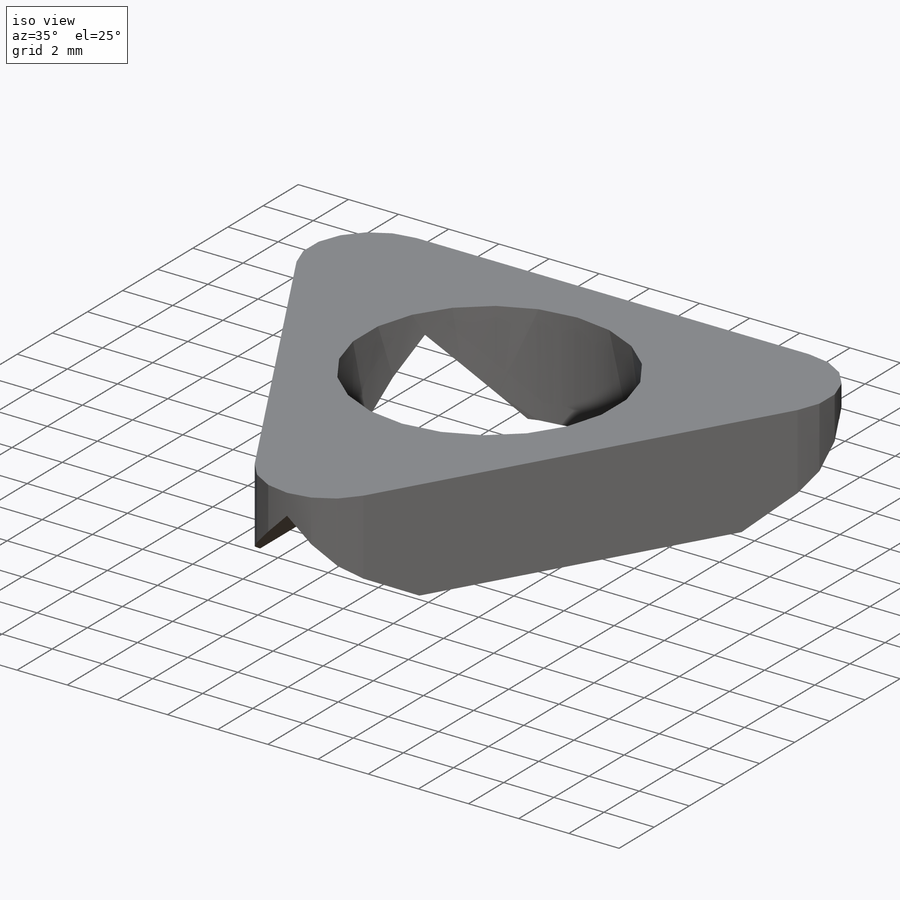
[diagram: iso view]
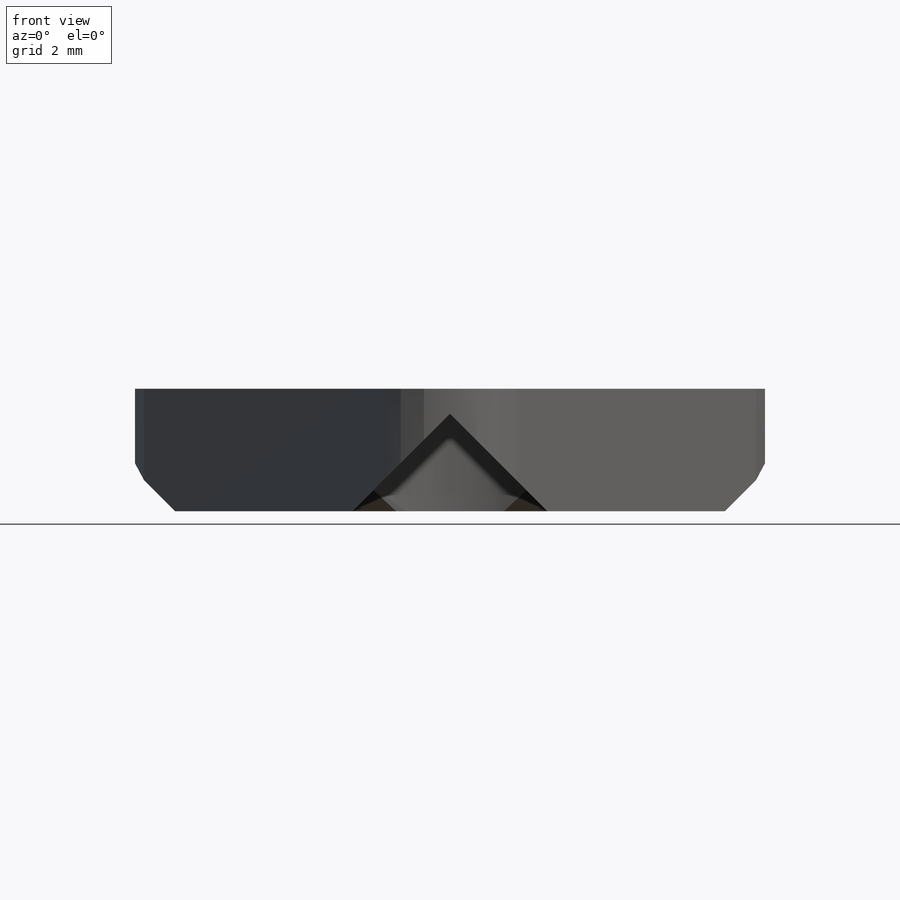
[diagram: front view]
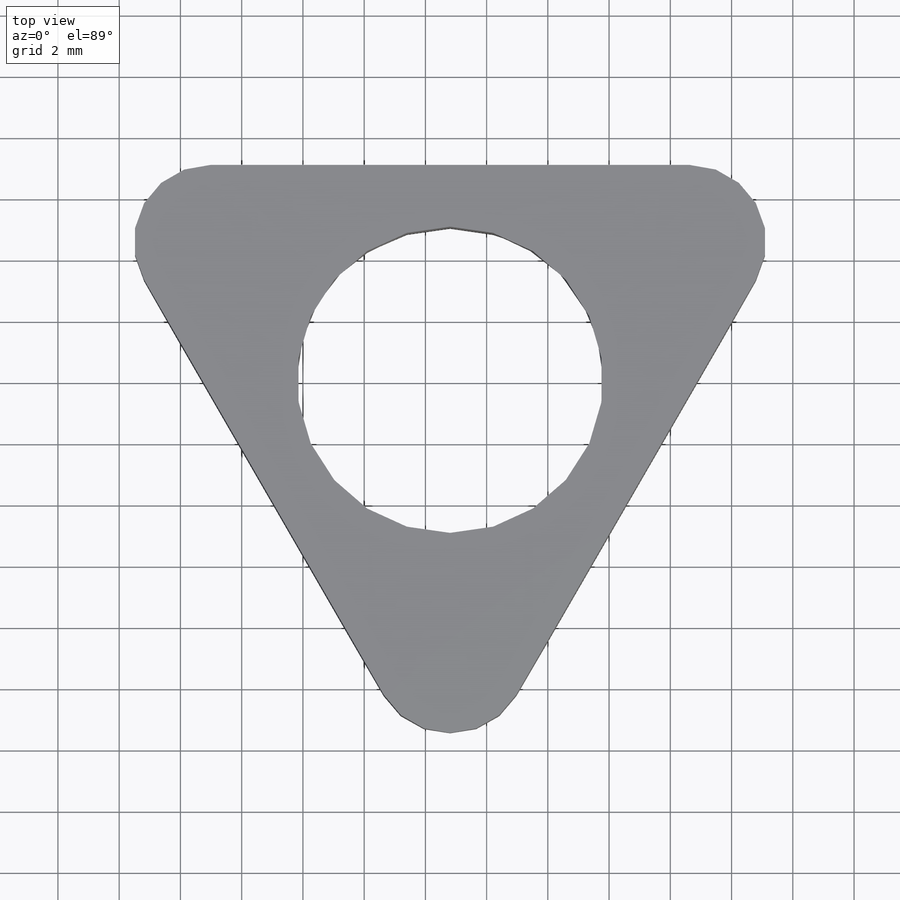
[diagram: top view]
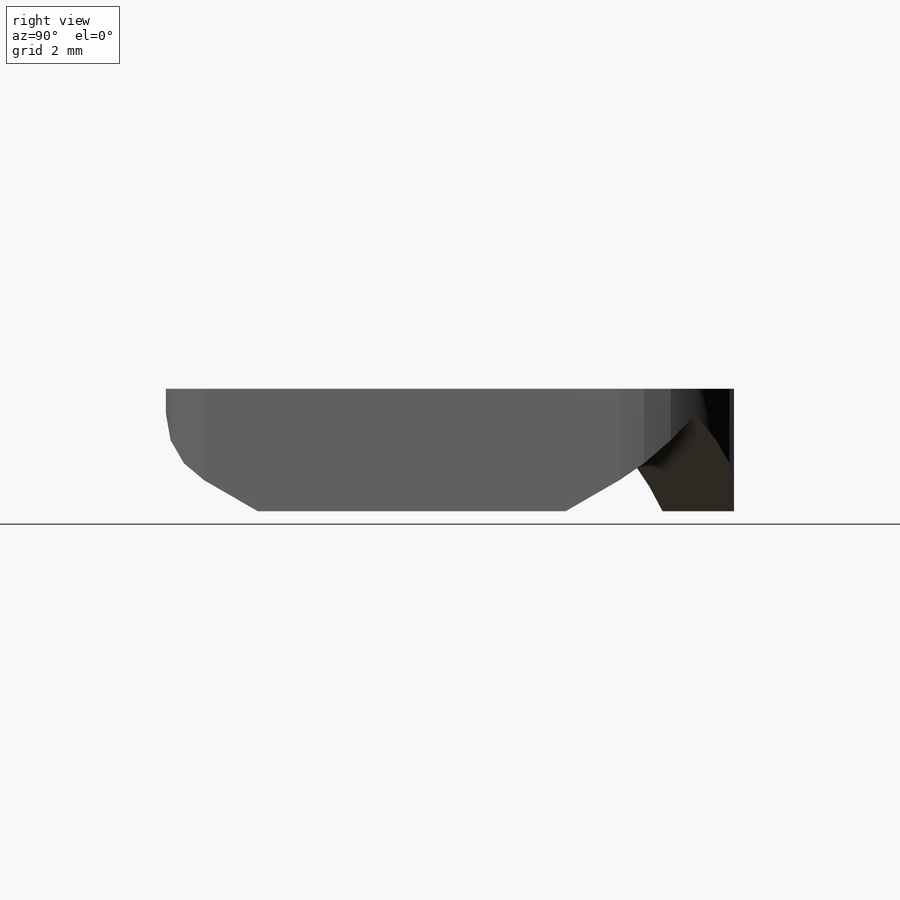
[diagram: right view]
SOLIDWORKS PART (.sldprt)
format: sldprt  version: not decoded by parser v0  size: 179,200 bytes
history: native  units: mm
features: sketch x5, cut_extrude x4, material x1, extrude x1, pattern_circular x1 (+14 scaffold rows collapsed)
feature tree (26):
  scaffold x14  (default folders/planes/origin — collapsed)
  material  "Material <not specified>"
  sketch  "Sketch1"  dims[c1.D1=2.5mm c1.D5=1.0mm c2.D1=10.0mm c2.D6=2.5mm c2.D5=6.5mm c2.D2=~14.352682mm c3.D2=300.0deg c3.D3=~13.069491mm c4.D3=60.0deg c4.D4=~7.545674mm c5.D4=60.0deg c6.D4=24.31mm c6.D6=~8.917862mm c6.D7=~9.953438mm c6.D8=10.0mm c7.D6=10.0mm]
  extrude  "Extrude1"  Depth=4mm
  sketch  "Sketch2"  dims[c1.D1=6.35mm c1.D3=4.7625mm c1.D2=~1.903355mm c2.D2=45.0deg c2.D1=3.175mm]
  cut_extrude  "Extrude2"  [1 undecoded]
  pattern_circular  "CirPattern1"  Count=3 Angle=360deg
  cut_extrude  "Extrude3"  [1 undecoded]
  sketch  "Sketch2<3>"  dims[D1=9.0mm]
  sketch  "Sketch4"  dims[c1.D1=~11.423958mm c2.D1=45.0deg]
  cut_extrude  "Extrude4"  [1 undecoded]
  sketch  "Sketch5"  dims[c1.D1=~2.003397mm c2.D1=45.0deg]
  cut_extrude  "Extrude7"  Depth=10mm BallDiameter=10mm
decode coverage: 8 of 11 modeling features carry decoded parameters
note: ~ marks probable driven/reference dimensions
note: 3 parameter values undecoded
summary: no parameter record found for 3 features
note: suppression state not decoded; provenance and decode notes live in map.json
